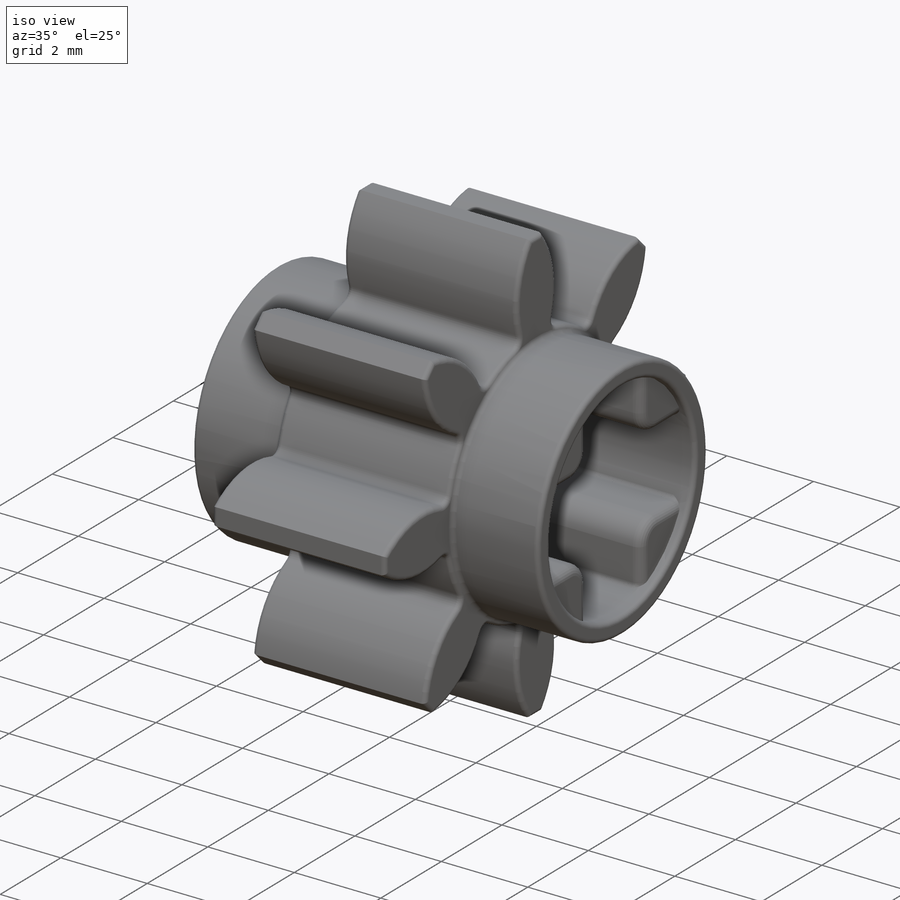
[diagram: iso view]
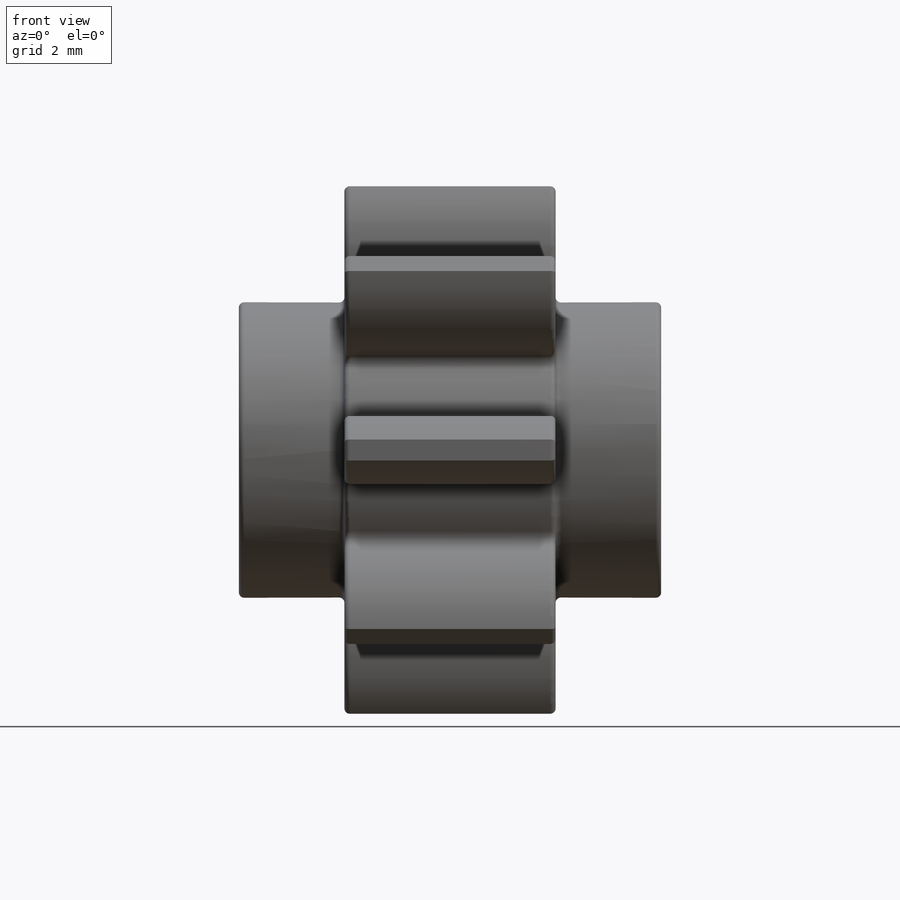
[diagram: front view]
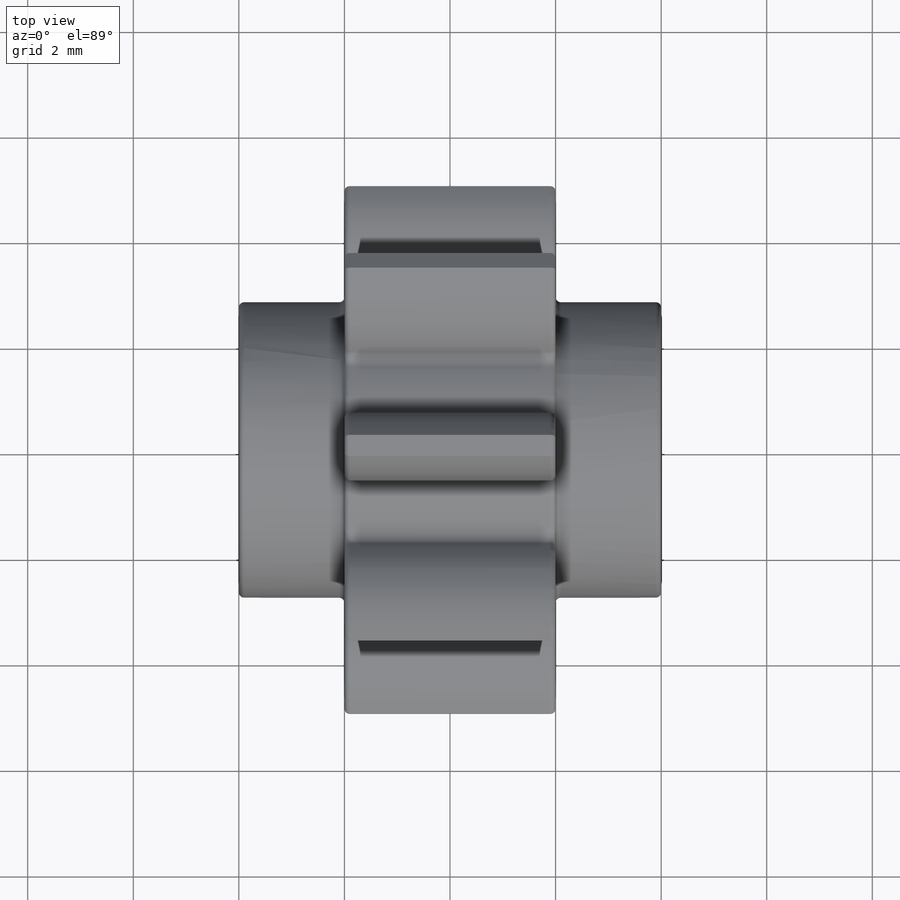
[diagram: top view]
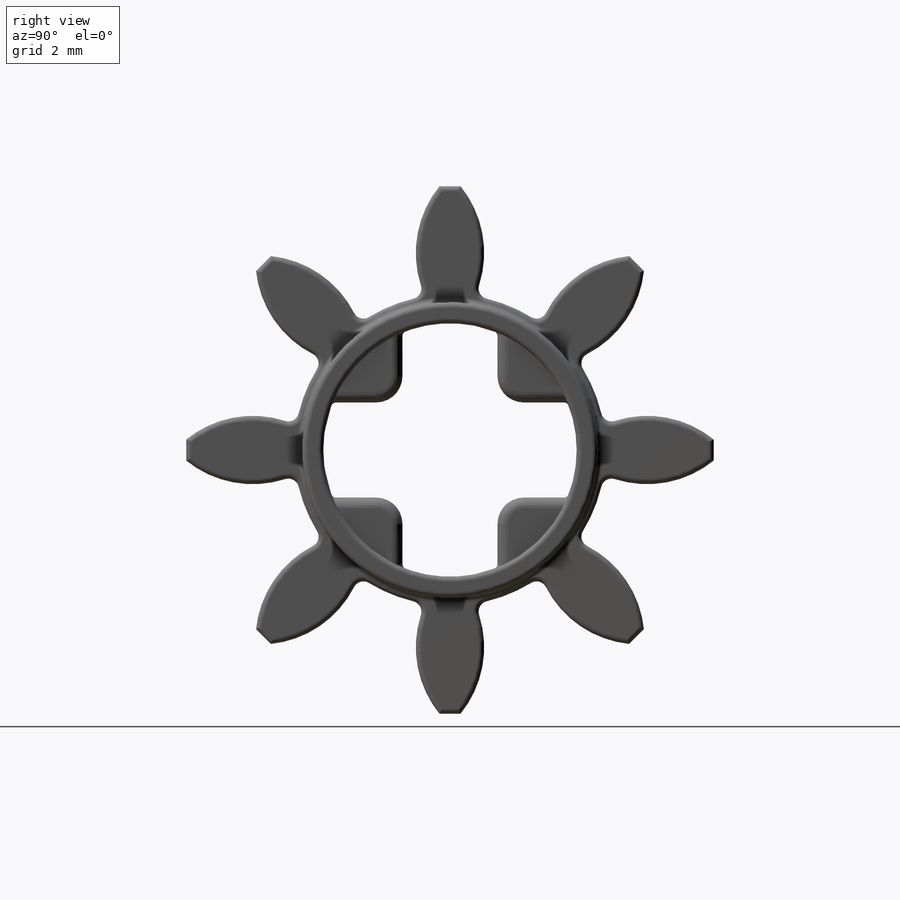
[diagram: right view]
SOLIDWORKS PART (.sldprt)
format: sldprt  version: not decoded by parser v0  size: 1,001,984 bytes
history: native  units: mm
features: sketch x5, pattern_circular x4, plane x3, extrude x3, cut_extrude x2, material x1, fillet x1 (+10 scaffold rows collapsed)
feature tree (29):
  scaffold x10  (default folders/planes/origin — collapsed)
  material  "PET"
  plane  "Alzado"
  plane  "Planta"
  plane  "Vista lateral"
  sketch  "Croquis1"  dims[c1.D1=4.8mm c1.D3=0.5mm c1.D4=0.1mm c1.D2=1.8mm c2.D1=5.6mm c2.D2=4.8mm c3.D1=~1.517893mm]
  extrude  "Saliente-Extruir1"  Depth=8mm
  sketch  "Croquis2"  dims[D1=5.9mm]
  extrude  "Saliente-Extruir2"  Depth=4mm
  sketch  "Profile"  dims[c1.D1=10.0mm c1.D4=5.6mm c1.D5=9.6mm c1.D6=2.4mm c2.D5=2.0mm c2.D2=0.2mm c2.D3=0.8mm c3.D5=3.6mm c3.D7=~1.124342mm c3.D6=~1.124342mm c4.D7=1.2mm c4.D6=0.4mm]
  extrude  "Tooth"  Depth=4mm
  fillet  "Redondeo1"  Radius=0.2mm
  pattern_circular  "Matriz Teeth"  Count=8 Angle=360deg
  sketch  "Croquis3"
  cut_extrude  "Cortar-Extruir1"  Depth=0.2mm
  sketch  "Croquis4"
  cut_extrude  "Cortar-Extruir2"  Depth=0.2mm
  pattern_circular  "Redondeo2"  [2 undecoded]
  pattern_circular  "Redondeo3"  [2 undecoded]
  pattern_circular  "Redondeo4"  [2 undecoded]
decode coverage: 10 of 15 modeling features carry decoded parameters
note: ~ marks probable driven/reference dimensions
note: 6 parameter values undecoded
note: suppression state not decoded; provenance and decode notes live in map.json
